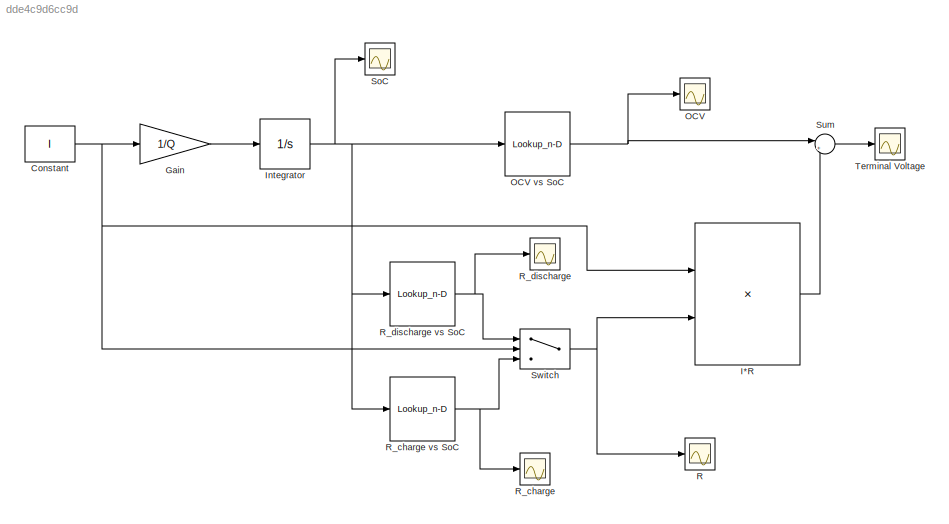
MODEL slx_dde4c9d6cc9d
KIND model
CONFIG AbsTol = auto
CONFIG EnableMultiTasking = off
CONFIG FixedStep = auto
CONFIG MaxStep = auto
CONFIG MinStep = auto
CONFIG RelTol = 1e-3
CONFIG SampleTimeConstraint = Unconstrained
CONFIG SolverName = VariableStepAuto
CONFIG StartTime = 0.0
CONFIG StopTime = Sim_time
BLOCK [Constant] Constant
  Value = I
BLOCK [Gain] Gain
  Gain = 1/Q
BLOCK [Product] I*R
BLOCK [Integrator] Integrator
BLOCK [Scope] OCV
  Floating = off
  NumInputPorts = 1
  ScopeSpecificationString = Simulink.scopes.TimeScopeBlockCfg('CurrentConfiguration', extmgr.ConfigurationSet(extmgr.Configuration('Core','General UI',true),extmgr.Configuration('Core','Source UI',true),extmgr.Configuration('Sources','WiredSimulink',true,'DataLoggingVariableName','ScopeData5'),extmgr.Configuration('Visuals','Time Domain',true,'SerializedDisplays',{struct('MinYLimReal','2.16','MaxYLimReal','4.56','YLabelReal'...<+1343ch>
BLOCK [Lookup_n-D] OCV vs SoC
  BreakpointsForDimension1 = [0;0.01;0.02;0.03;0.04;0.05;0.06;0.07;0.08;0.09;0.1;0.11;0.12;0.13;0.14;0.15;0.16;0.17;0.18;0.19;0.2;0.21;0.22;0.23;0.24;0.25;0.26;0.27;0.28;0.29;0.3;0.31;0.32;0.33;0.34;0.35;0.36;0.37;0.38;0.39;0.4;0.41;0.42;0.43;0.44;0.45;0.46;0.47;0.48;0.49;0.5;0.51;0.52;0.53;0.54;0.55;0.56;0.57;0.58;0.59;0.6;0.61;0.62;0.63;0.64;0.65;0.66;0.67;0.68;0.69;0.7;0.71;0.72;0.73;0.74;0.75;0.76;0.77;0.78;0.79;0.8;0.81;...<+91ch>
  InputPortMap = u0
  InternalRulePriority = Speed
  NumberOfTableDimensions = 1
  RndMeth = Simplest
  Table = [2.4;2.86404;3.33456;3.47124;3.5586;3.62364;3.6762;3.72036;3.7584;3.7902;3.81708;3.83568;3.84504;3.8508;3.85596;3.861;3.867;3.87528;3.88308;3.88956;3.89496;3.89976;3.9048;3.90828;3.9132;3.91788;3.92184;3.92652;3.92964;3.93192;3.93552;3.93828;3.94092;3.94296;3.94644;3.9486;3.9498;3.95256;3.95436;3.95616;3.95796;3.95904;3.9588;3.96048;3.96144;3.9624;3.96324;3.96372;3.9648;3.96588;3.96636;3.96792;3.9...<+378ch>
BLOCK [Scope] R
  Floating = off
  NumInputPorts = 1
  ScopeSpecificationString = Simulink.scopes.TimeScopeBlockCfg('CurrentConfiguration', extmgr.ConfigurationSet(extmgr.Configuration('Core','General UI',true),extmgr.Configuration('Core','Source UI',true),extmgr.Configuration('Sources','WiredSimulink',true,'DataLoggingVariableName','ScopeData2'),extmgr.Configuration('Visuals','Time Domain',true,'SerializedDisplays',{struct('MinYLimReal','0.02838','MaxYLimReal','0.1524','YLabel...<+1385ch>
BLOCK [Scope] R_charge
  Floating = off
  NumInputPorts = 1
  ScopeSpecificationString = Simulink.scopes.TimeScopeBlockCfg('CurrentConfiguration', extmgr.ConfigurationSet(extmgr.Configuration('Core','General UI',true),extmgr.Configuration('Core','Source UI',true),extmgr.Configuration('Sources','WiredSimulink',true,'DataLoggingVariableName','ScopeData3'),extmgr.Configuration('Visuals','Time Domain',true,'SerializedDisplays',{struct('MinYLimReal','0.06807','MaxYLimReal','0.17021','YLabe...<+1372ch>
BLOCK [Lookup_n-D] R_charge vs SoC
  BreakpointsForDimension1 = SoC
  InputPortMap = u0
  InternalRulePriority = Speed
  NumberOfTableDimensions = 1
  RndMeth = Simplest
  Table = R_charge
BLOCK [Scope] R_discharge
  Floating = off
  NumInputPorts = 1
  ScopeSpecificationString = Simulink.scopes.TimeScopeBlockCfg('CurrentConfiguration', extmgr.ConfigurationSet(extmgr.Configuration('Core','General UI',true),extmgr.Configuration('Core','Source UI',true),extmgr.Configuration('Sources','WiredSimulink',true,'DataLoggingVariableName','ScopeData4'),extmgr.Configuration('Visuals','Time Domain',true,'SerializedDisplays',{struct('MinYLimReal','0.02838','MaxYLimReal','0.1524','YLabel...<+1371ch>
BLOCK [Lookup_n-D] R_discharge vs SoC
  BreakpointsForDimension1 = SoC
  InputPortMap = u0
  InternalRulePriority = Speed
  NumberOfTableDimensions = 1
  RndMeth = Simplest
  Table = R_discharge
BLOCK [Scope] SoC
  Floating = off
  NumInputPorts = 1
  ScopeSpecificationString = Simulink.scopes.TimeScopeBlockCfg('CurrentConfiguration', extmgr.ConfigurationSet(extmgr.Configuration('Core','General UI',true),extmgr.Configuration('Core','Source UI',true),extmgr.Configuration('Sources','WiredSimulink',true),extmgr.Configuration('Visuals','Time Domain',true,'SerializedDisplays',{struct('MinYLimReal','-0.125','MaxYLimReal','1.125','YLabelReal','','MinYLimMag','0.00000','MaxYLimM...<+1318ch>
BLOCK [Sum] Sum
  Inputs = |+-
BLOCK [Switch] Switch
  Criteria = u2 > Threshold
  InputSameDT = off
  SaturateOnIntegerOverflow = off
  Threshold = 2.3
BLOCK [Scope] Terminal Voltage
  Floating = off
  NumInputPorts = 1
  ScopeSpecificationString = Simulink.scopes.TimeScopeBlockCfg('CurrentConfiguration', extmgr.ConfigurationSet(extmgr.Configuration('Core','General UI',true),extmgr.Configuration('Core','Source UI',true),extmgr.Configuration('Sources','WiredSimulink',true,'DataLoggingVariableName','ScopeData1'),extmgr.Configuration('Visuals','Time Domain',true,'SerializedDisplays',{struct('MinYLimReal','1.81396','MaxYLimReal','4.45432','YLabe...<+1360ch>
NET Constant:1 -> Gain:1, I*R:1, Switch:2
LINE Gain:1 -> Integrator:1
LINE I*R:1 -> Sum:2
NET Integrator:1 -> OCV vs SoC:1, R_charge vs SoC:1, R_discharge vs SoC:1, SoC:1
NET OCV vs SoC:1 -> OCV:1, Sum:1
NET R_charge vs SoC:1 -> R_charge:1, Switch:3
NET R_discharge vs SoC:1 -> R_discharge:1, Switch:1
LINE Sum:1 -> Terminal Voltage:1
NET Switch:1 -> I*R:2, R:1
note: NET lines group one-source signal fan-out (src -> all destinations, sorted); 1:1 wires keep LINE
